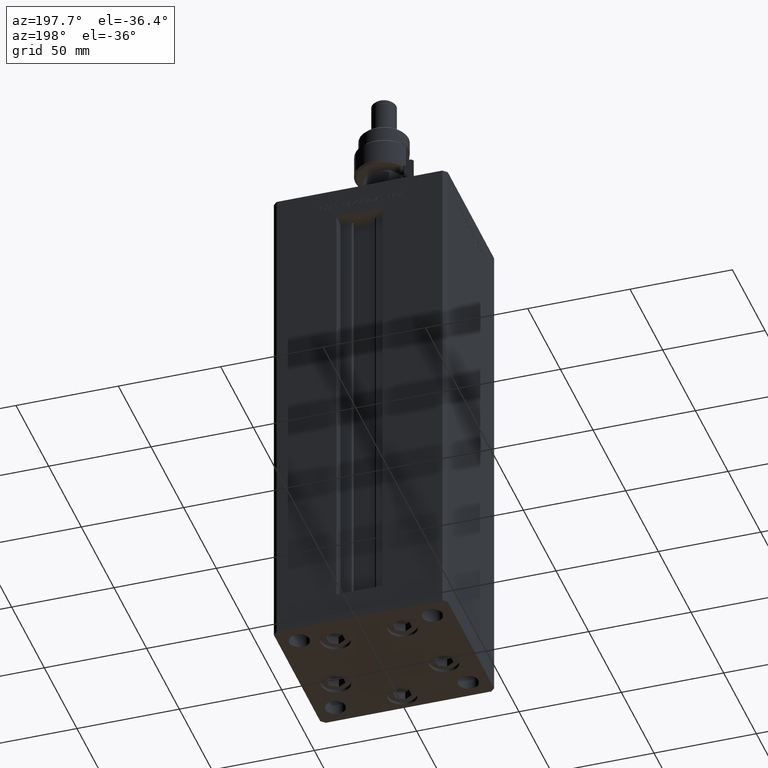
[diagram: clean part render]
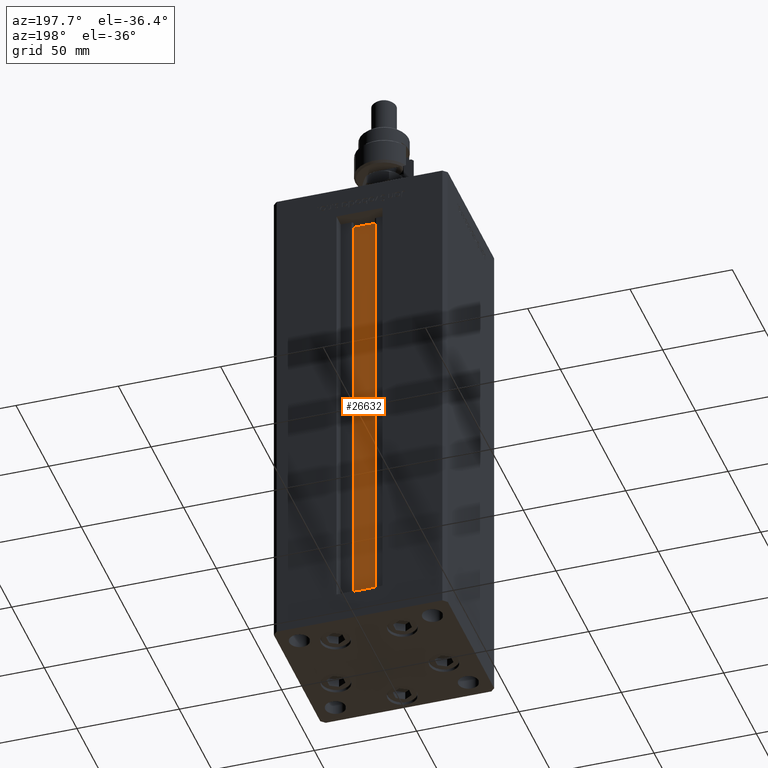
[diagram: same view with one face highlighted and labeled with its STEP entity id]
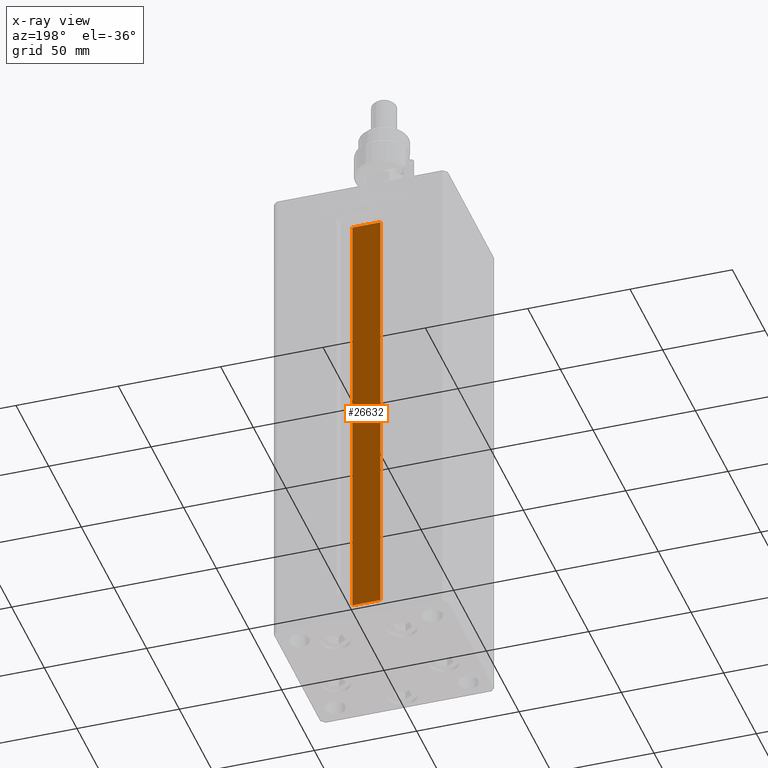
[diagram: x-ray of the same camera — body ghosted, the highlighted face saturated]
A machine part, auxiliary view. The second image highlights one B-rep face of the part: STEP entity #26632.
The next image is the same camera in x-ray: the body ghosted, the highlighted face saturated — about 0% of this face is hidden behind the body in this view.
In plain terms, the highlighted planar face has unit normal (0, -1, 0).
Its self-contained STEP definition (entity closure, byte-faithful):
#2592 = CARTESIAN_POINT ( 'NONE',  ( -6.876153656360465938, 26.99999999999986855, 0.000000000000000000 ) ) ;
#5527 = ORIENTED_EDGE ( 'NONE', *, *, #19751, .F. ) ;
#6757 = DIRECTION ( 'NONE',  ( -0.000000000000000000, -0.000000000000000000, 1.000000000000000000 ) ) ;
#7203 = EDGE_LOOP ( 'NONE', ( #5527, #28555, #23318, #12741 ) ) ;
#8040 = CARTESIAN_POINT ( 'NONE',  ( 6.876153656360465938, 26.99999999999986855, 218.5000000000000000 ) ) ;
#8950 = CARTESIAN_POINT ( 'NONE',  ( 6.876153656360465938, 26.99999999999986855, 0.000000000000000000 ) ) ;
#11978 = DIRECTION ( 'NONE',  ( 0.000000000000000000, -1.000000000000000000, -0.000000000000000000 ) ) ;
#12741 = ORIENTED_EDGE ( 'NONE', *, *, #23032, .F. ) ;
#13389 = AXIS2_PLACEMENT_3D ( 'NONE', #24768, #11978, #55074 ) ;
#13536 = DIRECTION ( 'NONE',  ( -1.000000000000000000, 0.000000000000000000, 0.000000000000000000 ) ) ;
#13547 = VERTEX_POINT ( 'NONE', #24281 ) ;
#14076 = VERTEX_POINT ( 'NONE', #46458 ) ;
#16153 = PLANE ( 'NONE',  #13389 ) ;
#19523 = LINE ( 'NONE', #28683, #41900 ) ;
#19751 = EDGE_CURVE ( 'NONE', #24886, #21480, #19523, .T. ) ;
#21480 = VERTEX_POINT ( 'NONE', #8040 ) ;
#22430 = LINE ( 'NONE', #51652, #38137 ) ;
#23032 = EDGE_CURVE ( 'NONE', #21480, #14076, #22430, .T. ) ;
#23049 = VECTOR ( 'NONE', #6757, 1000.000000000000000 ) ;
#23318 = ORIENTED_EDGE ( 'NONE', *, *, #23472, .T. ) ;
#23472 = EDGE_CURVE ( 'NONE', #13547, #14076, #43801, .T. ) ;
#24281 = CARTESIAN_POINT ( 'NONE',  ( -6.876153656360465938, 26.99999999999986855, 0.000000000000000000 ) ) ;
#24768 = CARTESIAN_POINT ( 'NONE',  ( 6.876153656360465938, 26.99999999999986855, 0.000000000000000000 ) ) ;
#24886 = VERTEX_POINT ( 'NONE', #8950 ) ;
#25036 = FACE_OUTER_BOUND ( 'NONE', #7203, .T. ) ;
#26632 = ADVANCED_FACE ( 'NONE', ( #25036 ), #16153, .F. ) ;
#27957 = CARTESIAN_POINT ( 'NONE',  ( 6.876153656360465938, 26.99999999999986855, 0.000000000000000000 ) ) ;
#28371 = EDGE_CURVE ( 'NONE', #13547, #24886, #44948, .T. ) ;
#28555 = ORIENTED_EDGE ( 'NONE', *, *, #28371, .F. ) ;
#28683 = CARTESIAN_POINT ( 'NONE',  ( 6.876153656360465938, 26.99999999999986855, 0.000000000000000000 ) ) ;
#38137 = VECTOR ( 'NONE', #13536, 1000.000000000000000 ) ;
#39672 = DIRECTION ( 'NONE',  ( 1.000000000000000000, -0.000000000000000000, -0.000000000000000000 ) ) ;
#40109 = VECTOR ( 'NONE', #39672, 1000.000000000000000 ) ;
#41900 = VECTOR ( 'NONE', #46204, 1000.000000000000000 ) ;
#43801 = LINE ( 'NONE', #2592, #23049 ) ;
#44948 = LINE ( 'NONE', #27957, #40109 ) ;
#46204 = DIRECTION ( 'NONE',  ( -0.000000000000000000, -0.000000000000000000, 1.000000000000000000 ) ) ;
#46458 = CARTESIAN_POINT ( 'NONE',  ( -6.876153656360465938, 26.99999999999986855, 218.5000000000000000 ) ) ;
#51652 = CARTESIAN_POINT ( 'NONE',  ( 0.000000000000000000, 26.99999999999986855, 218.5000000000000000 ) ) ;
#55074 = DIRECTION ( 'NONE',  ( 0.000000000000000000, 0.000000000000000000, -1.000000000000000000 ) ) ;